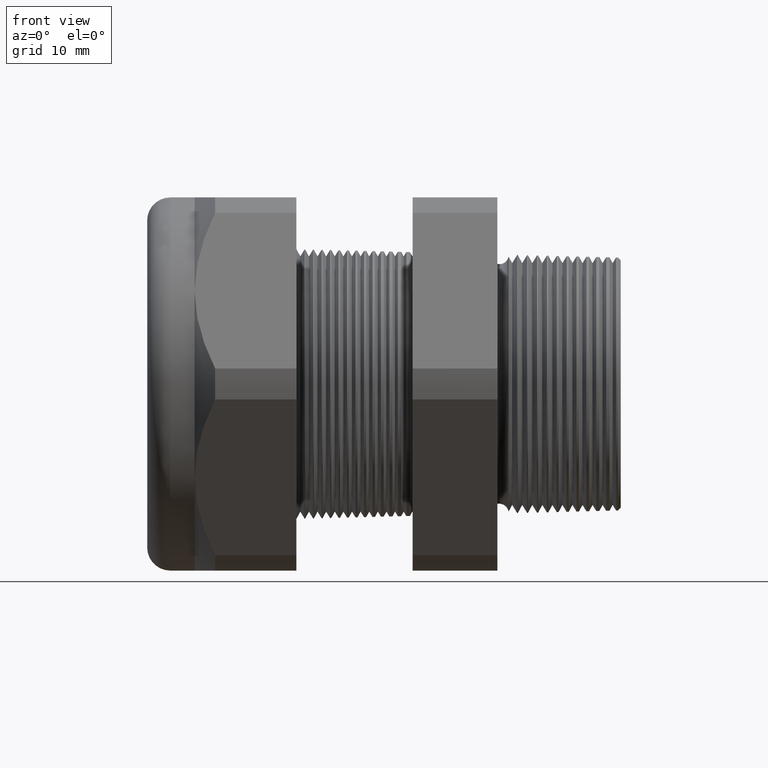
[diagram: clean part render]
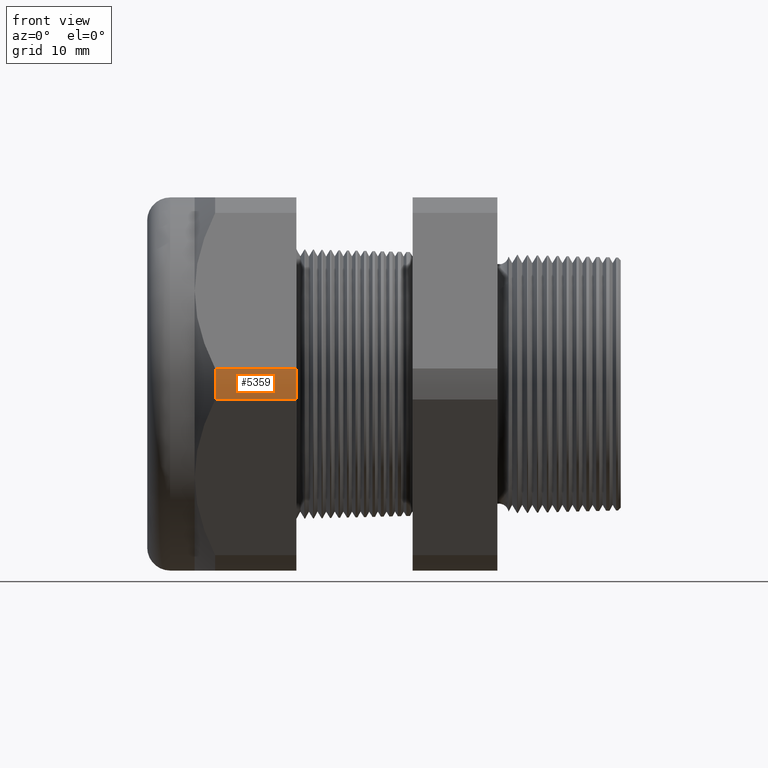
[diagram: same view with one face highlighted and labeled with its STEP entity id]
A machine part, front view. The second image highlights one B-rep face of the part: STEP entity #5359.
In plain terms, the highlighted cylindrical surface (partial cylindrical patch) has radius 18.3261 mm, axis along (-1, 0, 0).
Its self-contained STEP definition (entity closure, byte-faithful):
#3026 = DIRECTION ( 'NONE',  ( -1.000000000000000000, 0.0000000000000000000, 0.0000000000000000000 ) ) ;
#3027 = VECTOR ( 'NONE', #3026, 39.37007874015748100 ) ;
#3527 = CARTESIAN_POINT ( 'NONE',  ( 0.1200000000000000900, -0.7194909755756819800, -0.05380507471562082100 ) ) ;
#3528 = LINE ( 'NONE', #3527, #3027 ) ;
#3540 = DIRECTION ( 'NONE',  ( 0.0000000000000000000, 0.0000000000000000000, -1.000000000000000000 ) ) ;
#3541 = DIRECTION ( 'NONE',  ( 1.000000000000000000, 0.0000000000000000000, 0.0000000000000000000 ) ) ;
#3542 = AXIS2_PLACEMENT_3D ( 'NONE', #3549, #3541, #3540 ) ;
#3543 = CIRCLE ( 'NONE', #3542, 0.7215000000000000300 ) ;
#3544 = DIRECTION ( 'NONE',  ( 0.0000000000000000000, 0.0000000000000000000, -1.000000000000000000 ) ) ;
#3545 = DIRECTION ( 'NONE',  ( 1.000000000000000000, 0.0000000000000000000, 0.0000000000000000000 ) ) ;
#3546 = CARTESIAN_POINT ( 'NONE',  ( -1.293145669291338600, 0.0000000000000000000, 0.0000000000000000000 ) ) ;
#3547 = AXIS2_PLACEMENT_3D ( 'NONE', #3546, #3545, #3544 ) ;
#3548 = CIRCLE ( 'NONE', #3547, 0.7215000000000000300 ) ;
#3549 = CARTESIAN_POINT ( 'NONE',  ( -1.010314960629921100, 0.0000000000000000000, 0.0000000000000000000 ) ) ;
#3550 = CARTESIAN_POINT ( 'NONE',  ( -1.293145669291338600, -0.7194909755756819800, 0.05380507471562022400 ) ) ;
#3551 = CARTESIAN_POINT ( 'NONE',  ( -1.010314960629921100, -0.7194909755756819800, 0.05380507471562025900 ) ) ;
#3552 = DIRECTION ( 'NONE',  ( -1.000000000000000000, 0.0000000000000000000, 0.0000000000000000000 ) ) ;
#3553 = VECTOR ( 'NONE', #3552, 39.37007874015748100 ) ;
#3554 = CARTESIAN_POINT ( 'NONE',  ( 0.1200000000000000900, -0.7194909755756819800, 0.05380507471562025900 ) ) ;
#3555 = LINE ( 'NONE', #3554, #3553 ) ;
#3559 = AXIS2_PLACEMENT_3D ( 'NONE', #3615, #3614, #3613 ) ;
#3560 = CYLINDRICAL_SURFACE ( 'NONE', #3559, 0.7215000000000000300 ) ;
#3561 = FACE_OUTER_BOUND ( 'NONE', #5360, .T. ) ;
#3585 = CARTESIAN_POINT ( 'NONE',  ( -1.293145669291338600, -0.7194909755756819800, -0.05380507471562082100 ) ) ;
#3586 = CARTESIAN_POINT ( 'NONE',  ( -1.010314960629921100, -0.7194909755756819800, -0.05380507471562082100 ) ) ;
#3613 = DIRECTION ( 'NONE',  ( 0.0000000000000000000, 0.0000000000000000000, 1.000000000000000000 ) ) ;
#3614 = DIRECTION ( 'NONE',  ( -1.000000000000000000, 0.0000000000000000000, 0.0000000000000000000 ) ) ;
#3615 = CARTESIAN_POINT ( 'NONE',  ( 0.1200000000000000900, 0.0000000000000000000, 0.0000000000000000000 ) ) ;
#5332 = ORIENTED_EDGE ( 'NONE', *, *, #5333, .T. ) ;
#5333 = EDGE_CURVE ( 'NONE', #5334, #5335, #3555, .T. ) ;
#5334 = VERTEX_POINT ( 'NONE', #3551 ) ;
#5335 = VERTEX_POINT ( 'NONE', #3550 ) ;
#5336 = ORIENTED_EDGE ( 'NONE', *, *, #5337, .T. ) ;
#5337 = EDGE_CURVE ( 'NONE', #5335, #5350, #3548, .T. ) ;
#5338 = ORIENTED_EDGE ( 'NONE', *, *, #5348, .F. ) ;
#5339 = ORIENTED_EDGE ( 'NONE', *, *, #5340, .F. ) ;
#5340 = EDGE_CURVE ( 'NONE', #5334, #5349, #3543, .T. ) ;
#5348 = EDGE_CURVE ( 'NONE', #5349, #5350, #3528, .T. ) ;
#5349 = VERTEX_POINT ( 'NONE', #3586 ) ;
#5350 = VERTEX_POINT ( 'NONE', #3585 ) ;
#5359 = ADVANCED_FACE ( 'NONE', ( #3561 ), #3560, .T. ) ;
#5360 = EDGE_LOOP ( 'NONE', ( #5332, #5336, #5338, #5339 ) ) ;